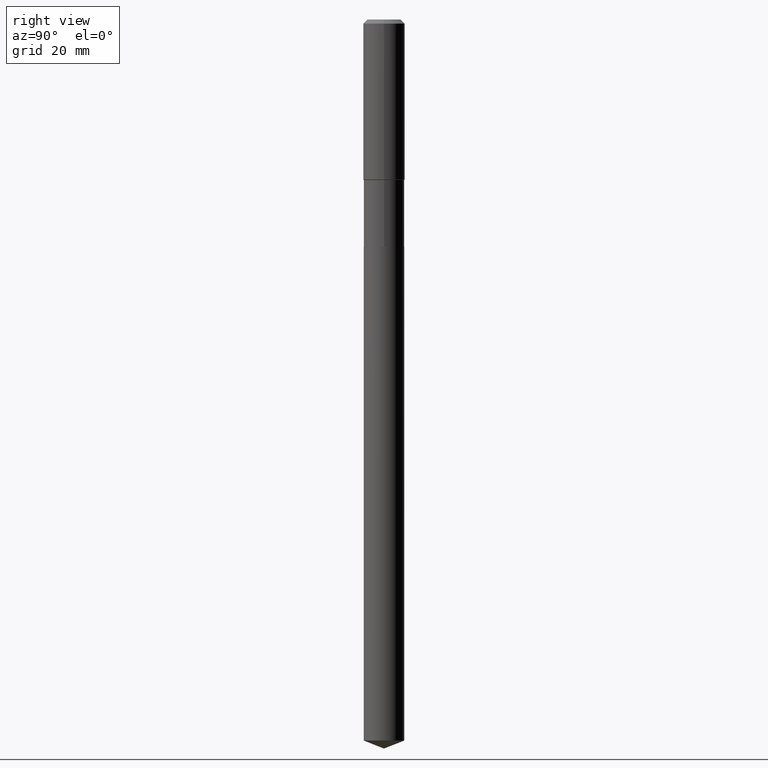
[diagram: clean part render]
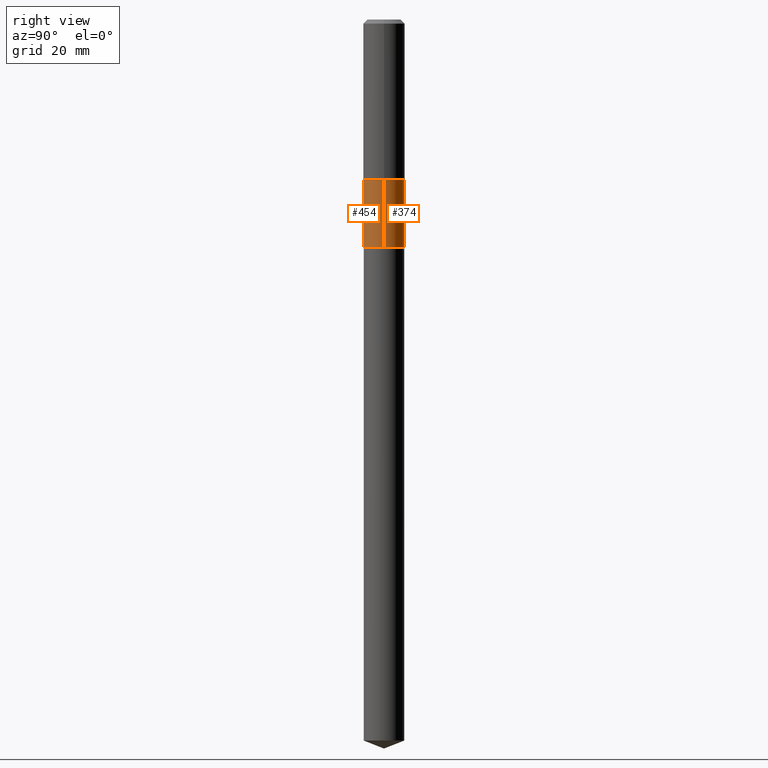
[diagram: same view with one multi-face feature highlighted, each face labeled with its STEP entity id]
A machine part, right view. The highlighted faces form ONE feature: a constant-radius fillet chain: 2 tangent blend faces with common blend radius 5.8496 mm. The faces share edges in the B-rep.
Their STEP definitions:
[1] entity #374 (Cylinder):
#5 = EDGE_CURVE ( 'NONE', #24, #431, #145, .T. ) ;
#20 = DIRECTION ( 'NONE',  ( 1.000000000000000000, -6.982962677686266711E-15, 4.876176775795935793E-29 ) ) ;
#23 = EDGE_CURVE ( 'NONE', #431, #477, #370, .T. ) ;
#24 = VERTEX_POINT ( 'NONE', #419 ) ;
#45 = ORIENTED_EDGE ( 'NONE', *, *, #5, .F. ) ;
#64 = AXIS2_PLACEMENT_3D ( 'NONE', #323, #194, #344 ) ;
#78 = EDGE_LOOP ( 'NONE', ( #245, #157, #131, #45 ) ) ;
#98 = DIRECTION ( 'NONE',  ( -2.445468806185136877E-29, 3.491481338843145188E-15, 1.000000000000000000 ) ) ;
#111 = AXIS2_PLACEMENT_3D ( 'NONE', #139, #392, #20 ) ;
#131 = ORIENTED_EDGE ( 'NONE', *, *, #23, .F. ) ;
#139 = CARTESIAN_POINT ( 'NONE',  ( 0.000000000000000000, 0.000000000000000000, 0.000000000000000000 ) ) ;
#145 = LINE ( 'NONE', #482, #230 ) ;
#157 = ORIENTED_EDGE ( 'NONE', *, *, #371, .T. ) ;
#174 = LINE ( 'NONE', #210, #317 ) ;
#181 = CARTESIAN_POINT ( 'NONE',  ( 6.310287707480127872E-29, -9.009418446750855338E-15, -2.580400000000000915 ) ) ;
#194 = DIRECTION ( 'NONE',  ( -2.445468806185136597E-29, 3.491481338843145583E-15, 1.000000000000000000 ) ) ;
#199 = CIRCLE ( 'NONE', #458, 0.2303000000000000047 ) ;
#206 = FACE_OUTER_BOUND ( 'NONE', #78, .T. ) ;
#210 = CARTESIAN_POINT ( 'NONE',  ( -0.2302999999999999214, 1.636379920455510170E-15, -1.132830751285704470E-29 ) ) ;
#219 = DIRECTION ( 'NONE',  ( 1.000000000000000000, -6.982962677686265922E-15, 0.000000000000000000 ) ) ;
#230 = VECTOR ( 'NONE', #375, 39.37007874015748143 ) ;
#242 = CARTESIAN_POINT ( 'NONE',  ( 0.2302999999999998937, -7.965814674570632384E-15, -1.820900000000000185 ) ) ;
#245 = ORIENTED_EDGE ( 'NONE', *, *, #307, .T. ) ;
#288 = VERTEX_POINT ( 'NONE', #413 ) ;
#290 = CARTESIAN_POINT ( 'NONE',  ( -0.2302999999999998937, -6.047148487869659763E-15, -1.820900000000000185 ) ) ;
#307 = EDGE_CURVE ( 'NONE', #24, #288, #199, .T. ) ;
#317 = VECTOR ( 'NONE', #98, 39.37007874015748143 ) ;
#321 = CYLINDRICAL_SURFACE ( 'NONE', #111, 0.2302999999999999214 ) ;
#323 = CARTESIAN_POINT ( 'NONE',  ( 4.452954149182515559E-29, -6.357638369899484921E-15, -1.820900000000000185 ) ) ;
#344 = DIRECTION ( 'NONE',  ( 1.000000000000000000, -6.982962677686269077E-15, 0.000000000000000000 ) ) ;
#370 = CIRCLE ( 'NONE', #64, 0.2302999999999998937 ) ;
#371 = EDGE_CURVE ( 'NONE', #288, #477, #174, .T. ) ;
#374 = ADVANCED_FACE ( 'NONE', ( #206 ), #321, .T. ) ;
#375 = DIRECTION ( 'NONE',  ( -2.445468806185136877E-29, 3.491481338843145188E-15, 1.000000000000000000 ) ) ;
#392 = DIRECTION ( 'NONE',  ( -2.445468806185136597E-29, 3.491481338843145583E-15, 1.000000000000000000 ) ) ;
#413 = CARTESIAN_POINT ( 'NONE',  ( -0.2302999999999999770, -6.047148487869658185E-15, -2.580400000000000915 ) ) ;
#419 = CARTESIAN_POINT ( 'NONE',  ( 0.2303000000000000047, -1.061759475142200280E-14, -2.580400000000000915 ) ) ;
#431 = VERTEX_POINT ( 'NONE', #242 ) ;
#436 = DIRECTION ( 'NONE',  ( -2.445468806185136597E-29, 3.491481338843145583E-15, 1.000000000000000000 ) ) ;
#458 = AXIS2_PLACEMENT_3D ( 'NONE', #181, #436, #219 ) ;
#477 = VERTEX_POINT ( 'NONE', #290 ) ;
#482 = CARTESIAN_POINT ( 'NONE',  ( 0.2302999999999999214, -1.608176304671146674E-15, 1.122983511465803578E-29 ) ) ;
[2] entity #454 (Cylinder):
#5 = EDGE_CURVE ( 'NONE', #24, #431, #145, .T. ) ;
#24 = VERTEX_POINT ( 'NONE', #419 ) ;
#26 = ORIENTED_EDGE ( 'NONE', *, *, #5, .T. ) ;
#32 = EDGE_LOOP ( 'NONE', ( #150, #416, #26, #303 ) ) ;
#98 = DIRECTION ( 'NONE',  ( -2.445468806185136877E-29, 3.491481338843145188E-15, 1.000000000000000000 ) ) ;
#115 = DIRECTION ( 'NONE',  ( 1.000000000000000000, -6.982962677686265922E-15, 0.000000000000000000 ) ) ;
#132 = CARTESIAN_POINT ( 'NONE',  ( 0.000000000000000000, 0.000000000000000000, 0.000000000000000000 ) ) ;
#134 = AXIS2_PLACEMENT_3D ( 'NONE', #262, #255, #115 ) ;
#145 = LINE ( 'NONE', #482, #230 ) ;
#150 = ORIENTED_EDGE ( 'NONE', *, *, #371, .F. ) ;
#156 = CIRCLE ( 'NONE', #299, 0.2302999999999998937 ) ;
#174 = LINE ( 'NONE', #210, #317 ) ;
#176 = FACE_OUTER_BOUND ( 'NONE', #32, .T. ) ;
#210 = CARTESIAN_POINT ( 'NONE',  ( -0.2302999999999999214, 1.636379920455510170E-15, -1.132830751285704470E-29 ) ) ;
#230 = VECTOR ( 'NONE', #375, 39.37007874015748143 ) ;
#231 = CIRCLE ( 'NONE', #134, 0.2303000000000000047 ) ;
#236 = DIRECTION ( 'NONE',  ( -2.445468806185136597E-29, 3.491481338843145583E-15, 1.000000000000000000 ) ) ;
#242 = CARTESIAN_POINT ( 'NONE',  ( 0.2302999999999998937, -7.965814674570632384E-15, -1.820900000000000185 ) ) ;
#255 = DIRECTION ( 'NONE',  ( -2.445468806185136597E-29, 3.491481338843145583E-15, 1.000000000000000000 ) ) ;
#262 = CARTESIAN_POINT ( 'NONE',  ( 6.310287707480127872E-29, -9.009418446750855338E-15, -2.580400000000000915 ) ) ;
#287 = DIRECTION ( 'NONE',  ( -2.445468806185136597E-29, 3.491481338843145583E-15, 1.000000000000000000 ) ) ;
#288 = VERTEX_POINT ( 'NONE', #413 ) ;
#290 = CARTESIAN_POINT ( 'NONE',  ( -0.2302999999999998937, -6.047148487869659763E-15, -1.820900000000000185 ) ) ;
#299 = AXIS2_PLACEMENT_3D ( 'NONE', #469, #287, #429 ) ;
#303 = ORIENTED_EDGE ( 'NONE', *, *, #382, .F. ) ;
#317 = VECTOR ( 'NONE', #98, 39.37007874015748143 ) ;
#319 = EDGE_CURVE ( 'NONE', #288, #24, #231, .T. ) ;
#371 = EDGE_CURVE ( 'NONE', #288, #477, #174, .T. ) ;
#375 = DIRECTION ( 'NONE',  ( -2.445468806185136877E-29, 3.491481338843145188E-15, 1.000000000000000000 ) ) ;
#382 = EDGE_CURVE ( 'NONE', #477, #431, #156, .T. ) ;
#413 = CARTESIAN_POINT ( 'NONE',  ( -0.2302999999999999770, -6.047148487869658185E-15, -2.580400000000000915 ) ) ;
#416 = ORIENTED_EDGE ( 'NONE', *, *, #319, .T. ) ;
#419 = CARTESIAN_POINT ( 'NONE',  ( 0.2303000000000000047, -1.061759475142200280E-14, -2.580400000000000915 ) ) ;
#429 = DIRECTION ( 'NONE',  ( 1.000000000000000000, -6.982962677686269077E-15, 0.000000000000000000 ) ) ;
#430 = AXIS2_PLACEMENT_3D ( 'NONE', #132, #236, #466 ) ;
#431 = VERTEX_POINT ( 'NONE', #242 ) ;
#454 = ADVANCED_FACE ( 'NONE', ( #176 ), #462, .T. ) ;
#462 = CYLINDRICAL_SURFACE ( 'NONE', #430, 0.2302999999999999214 ) ;
#466 = DIRECTION ( 'NONE',  ( 1.000000000000000000, -6.982962677686266711E-15, 4.876176775795935793E-29 ) ) ;
#469 = CARTESIAN_POINT ( 'NONE',  ( 4.452954149182515559E-29, -6.357638369899484921E-15, -1.820900000000000185 ) ) ;
#477 = VERTEX_POINT ( 'NONE', #290 ) ;
#482 = CARTESIAN_POINT ( 'NONE',  ( 0.2302999999999999214, -1.608176304671146674E-15, 1.122983511465803578E-29 ) ) ;